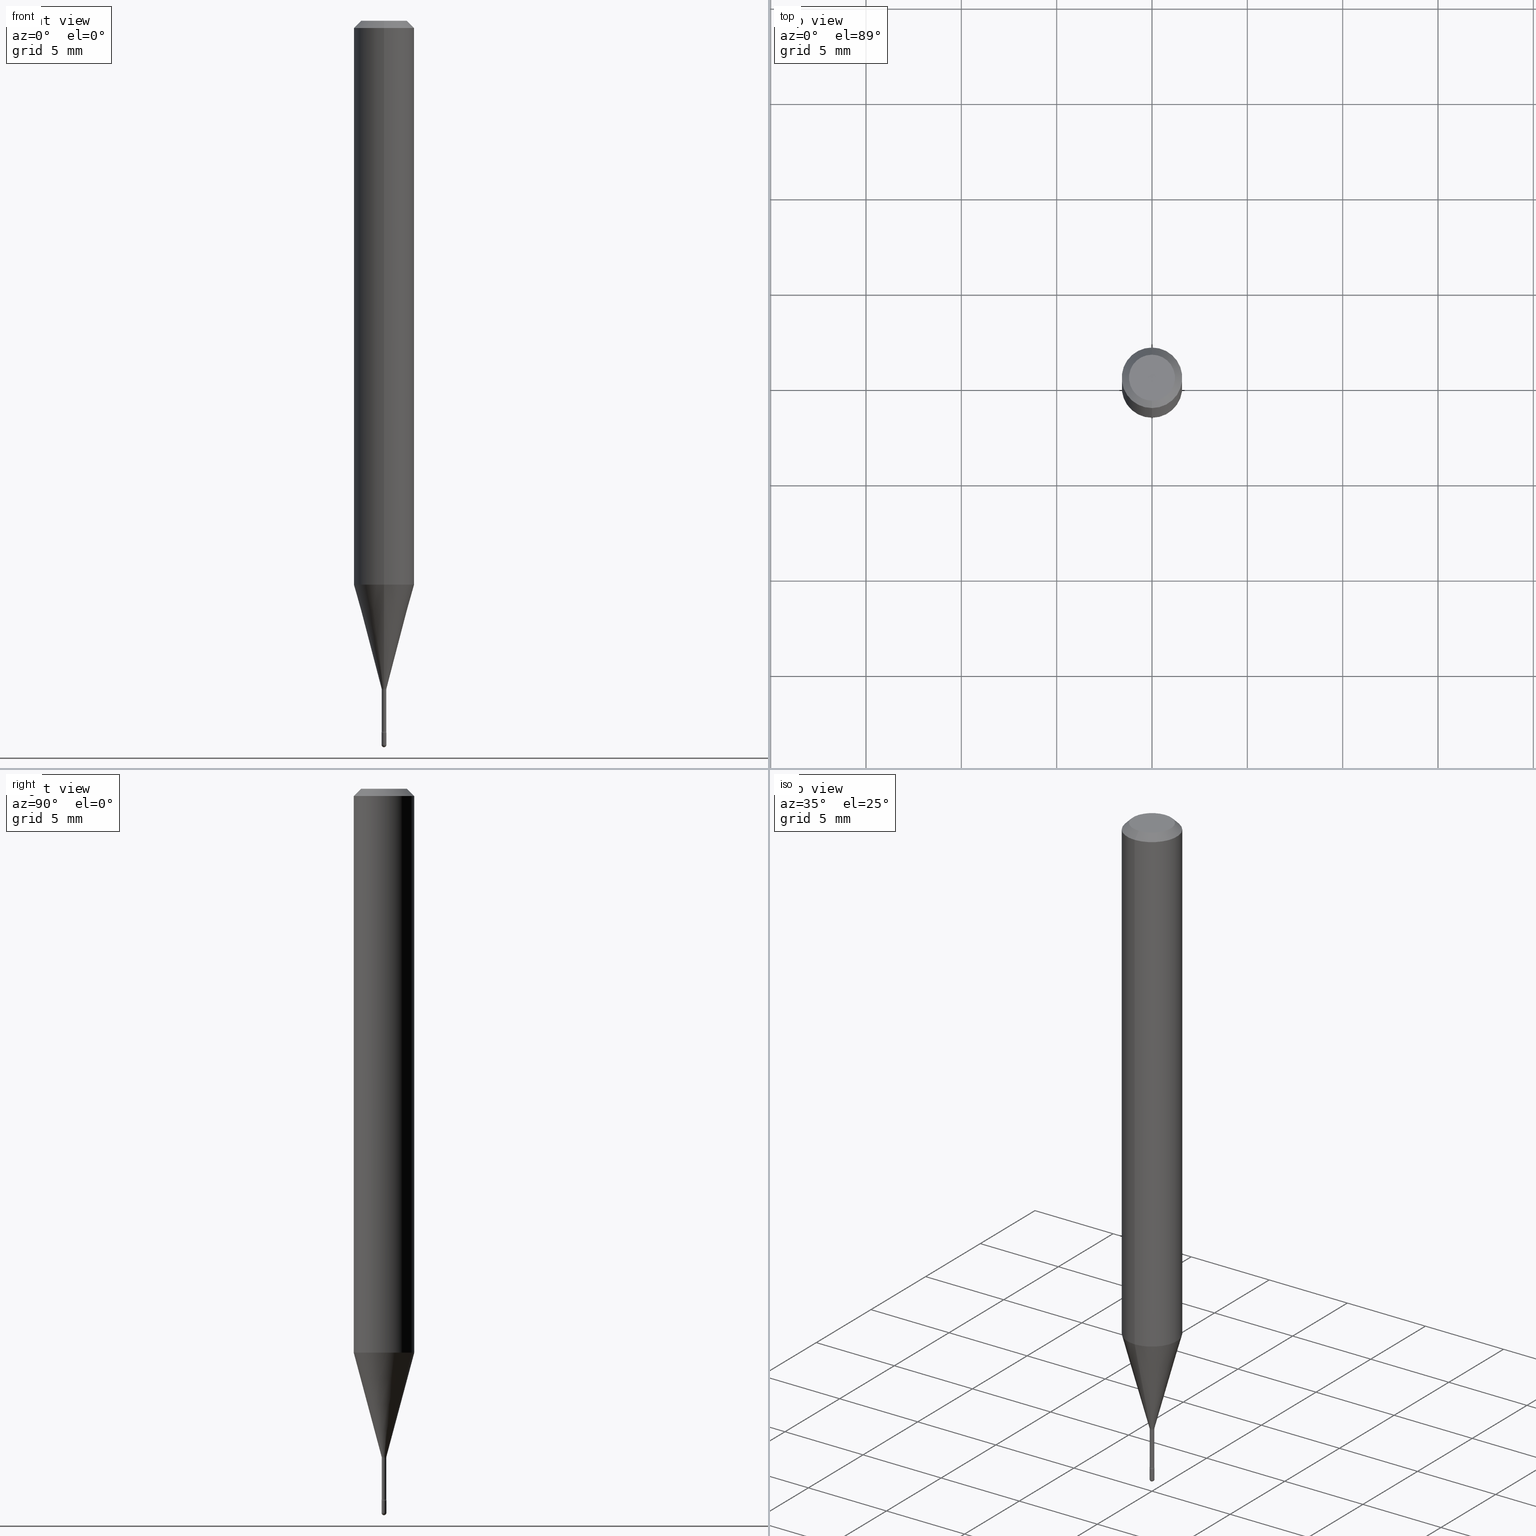
[diagram: canonical four-view strip — front | top / right | iso, engineering-drawing reading convention]
A machine part, canonical four-view strip (front | top / right | iso — engineering-drawing reading convention). The complete STEP part file that produces these views, byte-faithful:
ISO-10303-21;
HEADER;
FILE_DESCRIPTION (( 'STEP AP203' ),
    '1' );
FILE_NAME ('09298.STEP',
    '2024-04-09T22:14:48',
    ( '' ),
    ( '' ),
    'SwSTEP 2.0',
    'SolidWorks 2023',
    '' );
FILE_SCHEMA (( 'CONFIG_CONTROL_DESIGN' ));
ENDSEC;

DATA;
#1 = APPLICATION_CONTEXT ( 'configuration controlled 3d designs of mechanical parts and assemblies' ) ;
#2 = DIRECTION ( 'NONE',  ( -2.444369529050259608E-29, 3.493055566267258516E-15, 1.000000000000000000 ) ) ;
#3 = CIRCLE ( 'NONE', #561, 0.01500000000000003587 ) ;
#4 = CARTESIAN_POINT ( 'NONE',  ( 3.491481338846802914E-17, 0.004999999999994800270, -1.495000000000000107 ) ) ;
#5 = CYLINDRICAL_SURFACE ( 'NONE', #343, 0.06250000000000000000 ) ;
#6 = EDGE_CURVE ( 'NONE', #160, #361, #93, .T. ) ;
#7 = DIRECTION ( 'NONE',  ( -2.445468806185136597E-29, 3.491481338843145583E-15, 1.000000000000000000 ) ) ;
#8 = CIRCLE ( 'NONE', #462, 0.06250000000000000000 ) ;
#9 = ORIENTED_EDGE ( 'NONE', *, *, #72, .F. ) ;
#10 = AXIS2_PLACEMENT_3D ( 'NONE', #389, #523, #435 ) ;
#11 = DIRECTION ( 'NONE',  ( 1.000000000000000000, -7.105427357601001070E-15, 4.926334787267842840E-29 ) ) ;
#12 = ADVANCED_FACE ( 'NONE', ( #373 ), #153, .T. ) ;
#13 = VERTEX_POINT ( 'NONE', #493 ) ;
#14 = CARTESIAN_POINT ( 'NONE',  ( -1.375643647503857618E-16, -0.01970000000000483864, -1.381974787463811305 ) ) ;
#15 = EDGE_LOOP ( 'NONE', ( #286, #494 ) ) ;
#16 = ORIENTED_EDGE ( 'NONE', *, *, #350, .T. ) ;
#17 = CARTESIAN_POINT ( 'NONE',  ( -4.287811248607203282E-16, -0.06250000000000005551, -0.01499999999999986587 ) ) ;
#18 = ORIENTED_EDGE ( 'NONE', *, *, #518, .T. ) ;
#19 = CLOSED_SHELL ( 'NONE', ( #41, #524, #229, #376, #291, #310, #396, #128, #12, #155, #306, #56, #204, #413 ) ) ;
#20 = EDGE_CURVE ( 'NONE', #282, #359, #142, .T. ) ;
#21 = CIRCLE ( 'NONE', #550, 0.01500000000000001853 ) ;
#22 = DIRECTION ( 'NONE',  ( -6.982962677686265922E-15, -1.000000000000000000, 0.000000000000000000 ) ) ;
#23 = DIRECTION ( 'NONE',  ( -2.444369529050259608E-29, 3.493055566267258516E-15, 1.000000000000000000 ) ) ;
#24 = ORIENTED_EDGE ( 'NONE', *, *, #323, .T. ) ;
#25 = CARTESIAN_POINT ( 'NONE',  ( 3.552713678804105728E-17, 0.004999999999994881802, -1.470000000000000195 ) ) ;
#26 = DIRECTION ( 'NONE',  ( -2.444369529050259608E-29, 3.493055566267258516E-15, 1.000000000000000000 ) ) ;
#27 = ORIENTED_EDGE ( 'NONE', *, *, #475, .T. ) ;
#28 = APPROVAL_STATUS ( 'not_yet_approved' ) ;
#29 = EDGE_CURVE ( 'NONE', #486, #436, #173, .T. ) ;
#30 = CARTESIAN_POINT ( 'NONE',  ( 3.376595547336323602E-29, -4.829407693671720088E-15, -1.381974787463811305 ) ) ;
#31 = AXIS2_PLACEMENT_3D ( 'NONE', #30, #150, #104 ) ;
#32 = SHAPE_DEFINITION_REPRESENTATION ( #140, #101 ) ;
#33 = CIRCLE ( 'NONE', #308, 0.04749999999999999362 ) ;
#34 = APPROVAL_DATE_TIME ( #415, #179 ) ;
#35 = CARTESIAN_POINT ( 'NONE',  ( 4.440892098500909166E-16, 0.06249999999999594075, -1.164287463322519756 ) ) ;
#36 = EDGE_LOOP ( 'NONE', ( #257, #130, #97, #190 ) ) ;
#37 = CARTESIAN_POINT ( 'NONE',  ( -0.004999999999999997502, -5.140593948046958933E-15, -1.495000000000000107 ) ) ;
#38 = EDGE_LOOP ( 'NONE', ( #317, #206, #193, #504 ) ) ;
#39 = COORDINATED_UNIVERSAL_TIME_OFFSET ( 5, 0, .BEHIND. ) ;
#40 = CARTESIAN_POINT ( 'NONE',  ( 3.584558826531418680E-29, -5.126324140382401199E-15, -1.467015037688680135 ) ) ;
#41 = ADVANCED_FACE ( 'NONE', ( #543 ), #260, .F. ) ;
#42 = VECTOR ( 'NONE', #166, 39.37007874015748143 ) ;
#43 = PERSON_AND_ORGANIZATION_ROLE ( 'creator' ) ;
#44 = AXIS2_PLACEMENT_3D ( 'NONE', #223, #2, #181 ) ;
#45 = DIRECTION ( 'NONE',  ( -6.982962677686265922E-15, -1.000000000000000000, 0.000000000000000000 ) ) ;
#46 = CARTESIAN_POINT ( 'NONE',  ( 3.368567319581452030E-29, -4.813753684199207477E-15, -1.378092501787273605 ) ) ;
#47 = EDGE_CURVE ( 'NONE', #60, #228, #247, .T. ) ;
#48 = DIRECTION ( 'NONE',  ( 4.937700262164548042E-15, 0.7071067811865451302, -0.7071067811865499042 ) ) ;
#49 = CLOSED_SHELL ( 'NONE', ( #487, #457, #480, #118, #498 ) ) ;
#50 = DIRECTION ( 'NONE',  ( -2.444369529050259608E-29, 3.493055566267258911E-15, 1.000000000000000000 ) ) ;
#51 = APPROVAL_PERSON_ORGANIZATION ( #121, #362, #505 ) ;
#52 = EDGE_CURVE ( 'NONE', #367, #282, #481, .T. ) ;
#53 = CC_DESIGN_SECURITY_CLASSIFICATION ( #210, ( #432 ) ) ;
#54 = FACE_OUTER_BOUND ( 'NONE', #325, .T. ) ;
#55 = LINE ( 'NONE', #139, #274 ) ;
#56 = ADVANCED_FACE ( 'NONE', ( #171 ), #424, .F. ) ;
#57 = DIRECTION ( 'NONE',  ( -2.445468806185136597E-29, 3.491481338843145583E-15, 1.000000000000000000 ) ) ;
#58 = ORIENTED_EDGE ( 'NONE', *, *, #162, .F. ) ;
#59 = DIRECTION ( 'NONE',  ( -2.444369529050259608E-29, 3.493055566267258911E-15, 1.000000000000000000 ) ) ;
#60 = VERTEX_POINT ( 'NONE', #554 ) ;
#61 = DIRECTION ( 'NONE',  ( -2.444369529050259608E-29, 3.493055566267258516E-15, 1.000000000000000000 ) ) ;
#62 = DIRECTION ( 'NONE',  ( 6.982962677686265922E-15, 1.000000000000000000, -3.483106191921935554E-15 ) ) ;
#63 = EDGE_LOOP ( 'NONE', ( #398, #172, #124, #113 ) ) ;
#64 = APPLICATION_CONTEXT ( 'configuration controlled 3d designs of mechanical parts and assemblies' ) ;
#65 = CARTESIAN_POINT ( 'NONE',  ( 1.399769189447757443E-16, 0.01969999999999490214, -1.467015037688680135 ) ) ;
#66 = ORIENTED_EDGE ( 'NONE', *, *, #372, .T. ) ;
#67 = FACE_OUTER_BOUND ( 'NONE', #238, .T. ) ;
#68 = VERTEX_POINT ( 'NONE', #37 ) ;
#69 = VERTEX_POINT ( 'NONE', #562 ) ;
#70 = CARTESIAN_POINT ( 'NONE',  ( 3.593223207703881417E-29, -5.134791682412870366E-15, -1.470000000000000195 ) ) ;
#71 = ORIENTED_EDGE ( 'NONE', *, *, #6, .F. ) ;
#72 = EDGE_CURVE ( 'NONE', #80, #69, #559, .T. ) ;
#73 = MECHANICAL_CONTEXT ( 'NONE', #1, 'mechanical' ) ;
#74 = LINE ( 'NONE', #259, #240 ) ;
#75 = EDGE_LOOP ( 'NONE', ( #242, #235, #456, #106 ) ) ;
#76 = ORIENTED_EDGE ( 'NONE', *, *, #475, .F. ) ;
#77 = CIRCLE ( 'NONE', #354, 0.004699999999999988909 ) ;
#78 = DIRECTION ( 'NONE',  ( 6.982962677686265922E-15, 1.000000000000000000, 0.000000000000000000 ) ) ;
#79 = LINE ( 'NONE', #341, #363 ) ;
#80 = VERTEX_POINT ( 'NONE', #301 ) ;
#81 = EDGE_CURVE ( 'NONE', #188, #13, #8, .T. ) ;
#82 = PERSON_AND_ORGANIZATION_ROLE ( 'design_owner' ) ;
#83 = DIRECTION ( 'NONE',  ( 2.444369529050259048E-29, -3.493055566267258911E-15, -1.000000000000000000 ) ) ;
#84 = UNCERTAINTY_MEASURE_WITH_UNIT (LENGTH_MEASURE( 1.000000000000000082E-05 ), #502, 'distance_accuracy_value', 'NONE');
#85 = AXIS2_PLACEMENT_3D ( 'NONE', #70, #23, #202 ) ;
#86 = APPROVAL_ROLE ( '' ) ;
#87 = CONICAL_SURFACE ( 'NONE', #44, 0.005211112605663924778, 0.2617993877991496299 ) ;
#88 = CARTESIAN_POINT ( 'NONE',  ( 2.845948798400788253E-29, -4.066920804493912675E-15, -1.164287463322519312 ) ) ;
#89 = CARTESIAN_POINT ( 'NONE',  ( 4.440892098500912124E-16, 0.06249999999999995837, -0.01500000000000030129 ) ) ;
#90 = EDGE_CURVE ( 'NONE', #68, #203, #79, .T. ) ;
#91 = CARTESIAN_POINT ( 'NONE',  ( 3.668417000849999602E-29, -5.236915846564931875E-15, -1.500000000000000222 ) ) ;
#92 = PRODUCT ( '09298', '09298', '', ( #73 ) ) ;
#93 = CIRCLE ( 'NONE', #408, 0.005211112605663924778 ) ;
#94 = DIRECTION ( 'NONE',  ( -2.444369529050259608E-29, 3.493055566267258516E-15, 1.000000000000000000 ) ) ;
#95 = AXIS2_PLACEMENT_3D ( 'NONE', #500, #539, #454 ) ;
#96 = DIRECTION ( 'NONE',  ( -2.444369529050259608E-29, 3.493055566267258516E-15, 1.000000000000000000 ) ) ;
#97 = ORIENTED_EDGE ( 'NONE', *, *, #372, .F. ) ;
#98 = EDGE_CURVE ( 'NONE', #367, #322, #431, .T. ) ;
#99 = CARTESIAN_POINT ( 'NONE',  ( -1.169113584055446105E-44, 1.669184350826100908E-30, 4.780733988912460139E-16 ) ) ;
#100 = ORIENTED_EDGE ( 'NONE', *, *, #509, .T. ) ;
#101 = ADVANCED_BREP_SHAPE_REPRESENTATION ( '09298', ( #297, #477, #491 ), #529 ) ;
#102 = DIRECTION ( 'NONE',  ( 1.000000000000000000, -6.982962677686266711E-15, 4.876176775795936914E-29 ) ) ;
#103 = VECTOR ( 'NONE', #111, 39.37007874015748143 ) ;
#104 = DIRECTION ( 'NONE',  ( -6.982962677686265133E-15, -1.000000000000000000, 3.493055566267258911E-15 ) ) ;
#105 = LOCAL_TIME ( 18, 14, 48.00000000000000000, #168 ) ;
#106 = ORIENTED_EDGE ( 'NONE', *, *, #81, .F. ) ;
#107 = ORIENTED_EDGE ( 'NONE', *, *, #315, .F. ) ;
#108 = APPROVAL_DATE_TIME ( #283, #345 ) ;
#109 = ORIENTED_EDGE ( 'NONE', *, *, #420, .F. ) ;
#110 = CARTESIAN_POINT ( 'NONE',  ( 0.000000000000000000, 0.000000000000000000, 0.000000000000000000 ) ) ;
#111 = DIRECTION ( 'NONE',  ( -4.851104656540964275E-15, -0.7071067811865500152, -0.7071067811865450192 ) ) ;
#112 = CYLINDRICAL_SURFACE ( 'NONE', #482, 0.004999999999999997502 ) ;
#113 = ORIENTED_EDGE ( 'NONE', *, *, #194, .F. ) ;
#114 = EDGE_CURVE ( 'NONE', #359, #496, #295, .T. ) ;
#115 = CIRCLE ( 'NONE', #384, 0.06250000000000000000 ) ;
#116 = DIRECTION ( 'NONE',  ( 7.105427357601000281E-15, 1.000000000000000000, 0.000000000000000000 ) ) ;
#117 = VERTEX_POINT ( 'NONE', #512 ) ;
#118 = ADVANCED_FACE ( 'NONE', ( #338 ), #133, .T. ) ;
#119 = CARTESIAN_POINT ( 'NONE',  ( -4.364351673553912750E-16, -0.06250000000000005551, -0.01499999999999986587 ) ) ;
#120 = ORIENTED_EDGE ( 'NONE', *, *, #218, .T. ) ;
#121 = PERSON_AND_ORGANIZATION ( #267, #187 ) ;
#122 = DIRECTION ( 'NONE',  ( 1.839019923739595977E-15, 0.2588190451025243477, 0.9659258262890673130 ) ) ;
#123 = DIRECTION ( 'NONE',  ( -6.982962677686265922E-15, -1.000000000000000000, 3.493055566267252206E-15 ) ) ;
#124 = ORIENTED_EDGE ( 'NONE', *, *, #221, .T. ) ;
#125 = AXIS2_PLACEMENT_3D ( 'NONE', #46, #222, #45 ) ;
#126 = AXIS2_PLACEMENT_3D ( 'NONE', #327, #149, #116 ) ;
#127 =( NAMED_UNIT ( * ) SI_UNIT ( $, .STERADIAN. ) SOLID_ANGLE_UNIT ( ) );
#128 = ADVANCED_FACE ( 'NONE', ( #131 ), #249, .T. ) ;
#129 = DIRECTION ( 'NONE',  ( -1.000000000000000000, 6.982962677686265922E-15, -4.883557194083113462E-29 ) ) ;
#130 = ORIENTED_EDGE ( 'NONE', *, *, #98, .T. ) ;
#131 = FACE_OUTER_BOUND ( 'NONE', #558, .T. ) ;
#132 = PERSON_AND_ORGANIZATION ( #267, #187 ) ;
#133 = SPHERICAL_SURFACE ( 'NONE', #268, 0.005000000000000040870 ) ;
#134 = AXIS2_PLACEMENT_3D ( 'NONE', #216, #465, #177 ) ;
#135 = AXIS2_PLACEMENT_3D ( 'NONE', #478, #94, #137 ) ;
#136 = LOCAL_TIME ( 18, 14, 48.00000000000000000, #318 ) ;
#137 = DIRECTION ( 'NONE',  ( -6.982962677686265133E-15, -1.000000000000000000, 0.000000000000000000 ) ) ;
#138 = CC_DESIGN_DATE_AND_TIME_ASSIGNMENT ( #437, #344, ( #210 ) ) ;
#139 = CARTESIAN_POINT ( 'NONE',  ( 4.364351673553919652E-16, 0.06249999999999995143, -0.01500000000000030129 ) ) ;
#140 = PRODUCT_DEFINITION_SHAPE ( 'NONE', 'NONE',  #273 ) ;
#141 = DIRECTION ( 'NONE',  ( -2.444369529050259608E-29, 3.493055566267258516E-15, 1.000000000000000000 ) ) ;
#142 = CIRCLE ( 'NONE', #439, 0.004999999999999997502 ) ;
#143 = PLANE ( 'NONE',  #510 ) ;
#144 = AXIS2_PLACEMENT_3D ( 'NONE', #110, #159, #358 ) ;
#145 = ORIENTED_EDGE ( 'NONE', *, *, #266, .T. ) ;
#146 = ORIENTED_EDGE ( 'NONE', *, *, #447, .T. ) ;
#147 = DIRECTION ( 'NONE',  ( -2.444369529050259048E-29, 3.493055566267258911E-15, 1.000000000000000000 ) ) ;
#148 = ORIENTED_EDGE ( 'NONE', *, *, #407, .F. ) ;
#149 = DIRECTION ( 'NONE',  ( 1.000000000000000000, -7.105427357601001070E-15, 4.926334787267842840E-29 ) ) ;
#150 = DIRECTION ( 'NONE',  ( -2.444369529050259608E-29, 3.493055566267258516E-15, 1.000000000000000000 ) ) ;
#151 = ORIENTED_EDGE ( 'NONE', *, *, #426, .T. ) ;
#152 = DIRECTION ( 'NONE',  ( -2.445468806185136597E-29, 3.491481338843145583E-15, 1.000000000000000000 ) ) ;
#153 = CONICAL_SURFACE ( 'NONE', #440, 0.06250000000000000000, 0.7853981633974483900 ) ;
#154 = EDGE_LOOP ( 'NONE', ( #71, #100, #444, #76 ) ) ;
#155 = ADVANCED_FACE ( 'NONE', ( #298 ), #263, .F. ) ;
#156 = CARTESIAN_POINT ( 'NONE',  ( 3.594839145092150820E-29, -5.132477568099424807E-15, -1.470000000000000195 ) ) ;
#157 = ORIENTED_EDGE ( 'NONE', *, *, #509, .F. ) ;
#158 = PERSON_AND_ORGANIZATION_ROLE ( 'classification_officer' ) ;
#159 = DIRECTION ( 'NONE',  ( -2.445468806185136597E-29, 3.491481338843145583E-15, 1.000000000000000000 ) ) ;
#160 = VERTEX_POINT ( 'NONE', #557 ) ;
#161 = LINE ( 'NONE', #402, #198 ) ;
#162 = EDGE_CURVE ( 'NONE', #361, #13, #74, .T. ) ;
#163 = EDGE_LOOP ( 'NONE', ( #460, #533, #555, #381, #66 ) ) ;
#164 = AXIS2_PLACEMENT_3D ( 'NONE', #430, #57, #520 ) ;
#165 = CIRCLE ( 'NONE', #232, 0.004999999999999997502 ) ;
#166 = DIRECTION ( 'NONE',  ( -2.444369529050259608E-29, 3.493055566267258911E-15, 1.000000000000000000 ) ) ;
#167 = ORIENTED_EDGE ( 'NONE', *, *, #564, .T. ) ;
#168 = COORDINATED_UNIVERSAL_TIME_OFFSET ( 5, 0, .BEHIND. ) ;
#169 = EDGE_LOOP ( 'NONE', ( #215, #107, #328, #16 ) ) ;
#170 = PRODUCT_RELATED_PRODUCT_CATEGORY ( 'detail', '', ( #92 ) ) ;
#171 = FACE_OUTER_BOUND ( 'NONE', #38, .T. ) ;
#172 = ORIENTED_EDGE ( 'NONE', *, *, #407, .T. ) ;
#173 = CIRCLE ( 'NONE', #85, 0.005000000000000000104 ) ;
#174 = CIRCLE ( 'NONE', #349, 0.06250000000000000000 ) ;
#175 = DIRECTION ( 'NONE',  ( -6.982962677686265922E-15, -1.000000000000000000, 0.000000000000000000 ) ) ;
#176 = CARTESIAN_POINT ( 'NONE',  ( 3.702718207185757329E-17, 0.005211112605659110920, -1.378092501787273605 ) ) ;
#177 = DIRECTION ( 'NONE',  ( 6.982962677686265133E-15, 1.000000000000000000, 0.000000000000000000 ) ) ;
#178 = DIRECTION ( 'NONE',  ( -6.982962677686265922E-15, -1.000000000000000000, 3.493055566267258516E-15 ) ) ;
#179 = APPROVAL ( #386, 'UNSPECIFIED' ) ;
#180 = VECTOR ( 'NONE', #382, 39.37007874015748143 ) ;
#181 = DIRECTION ( 'NONE',  ( -6.982962677686265922E-15, -1.000000000000000000, 0.000000000000000000 ) ) ;
#182 = DIRECTION ( 'NONE',  ( 1.000000000000000000, -6.982962677686336130E-15, 0.000000000000000000 ) ) ;
#183 = APPROVAL_STATUS ( 'not_yet_approved' ) ;
#184 = DIRECTION ( 'NONE',  ( -2.444369529050259608E-29, 3.493055566267258516E-15, 1.000000000000000000 ) ) ;
#185 = AXIS2_PLACEMENT_3D ( 'NONE', #515, #214, #175 ) ;
#186 = DIRECTION ( 'NONE',  ( 1.000000000000000000, -6.982962677686336130E-15, 0.000000000000000000 ) ) ;
#187 = ORGANIZATION ( 'UNSPECIFIED', 'UNSPECIFIED', '' ) ;
#188 = VERTEX_POINT ( 'NONE', #35 ) ;
#189 = DIRECTION ( 'NONE',  ( 7.105427357601001859E-15, 1.000000000000000000, 0.000000000000000000 ) ) ;
#190 = ORIENTED_EDGE ( 'NONE', *, *, #20, .F. ) ;
#191 = CARTESIAN_POINT ( 'NONE',  ( 0.000000000000000000, 0.000000000000000000, 0.000000000000000000 ) ) ;
#192 = DIRECTION ( 'NONE',  ( 2.444369529050259608E-29, -3.493055566267258516E-15, -1.000000000000000000 ) ) ;
#193 = ORIENTED_EDGE ( 'NONE', *, *, #356, .T. ) ;
#194 = EDGE_CURVE ( 'NONE', #69, #80, #302, .T. ) ;
#195 = CARTESIAN_POINT ( 'NONE',  ( -3.281992458508950791E-17, -0.004700000000005113282, -1.467015037688680135 ) ) ;
#196 = CIRCLE ( 'NONE', #164, 0.004999999999999997502 ) ;
#197 = EDGE_LOOP ( 'NONE', ( #245, #167, #314, #357, #331 ) ) ;
#198 = VECTOR ( 'NONE', #278, 39.37007874015748143 ) ;
#199 = EDGE_LOOP ( 'NONE', ( #24, #145, #9, #544 ) ) ;
#200 = PERSON_AND_ORGANIZATION_ROLE ( 'design_supplier' ) ;
#201 = DIRECTION ( 'NONE',  ( -2.444369529050259608E-29, 3.493055566267258516E-15, 1.000000000000000000 ) ) ;
#202 = DIRECTION ( 'NONE',  ( -6.982962677686265922E-15, -1.000000000000000000, 0.000000000000000000 ) ) ;
#203 = VERTEX_POINT ( 'NONE', #467 ) ;
#204 = ADVANCED_FACE ( 'NONE', ( #507 ), #423, .T. ) ;
#205 = FACE_OUTER_BOUND ( 'NONE', #199, .T. ) ;
#206 = ORIENTED_EDGE ( 'NONE', *, *, #323, .F. ) ;
#207 = APPLICATION_PROTOCOL_DEFINITION ( 'international standard', 'config_control_design', 1994, #1 ) ;
#208 = AXIS2_PLACEMENT_3D ( 'NONE', #469, #83, #517 ) ;
#209 = AXIS2_PLACEMENT_3D ( 'NONE', #365, #61, #276 ) ;
#210 = SECURITY_CLASSIFICATION ( '', '', #368 ) ;
#211 = PERSON_AND_ORGANIZATION ( #267, #187 ) ;
#212 = CARTESIAN_POINT ( 'NONE',  ( 3.378057060392248747E-29, -4.827314723791478385E-15, -1.381974787463811305 ) ) ;
#213 = ORIENTED_EDGE ( 'NONE', *, *, #556, .T. ) ;
#214 = DIRECTION ( 'NONE',  ( -2.444369529050259608E-29, 3.493055566267258516E-15, 1.000000000000000000 ) ) ;
#215 = ORIENTED_EDGE ( 'NONE', *, *, #47, .F. ) ;
#216 = CARTESIAN_POINT ( 'NONE',  ( 3.655975865246779122E-29, -5.219764601570503141E-15, -1.495000000000000107 ) ) ;
#217 = AXIS2_PLACEMENT_3D ( 'NONE', #40, #346, #418 ) ;
#218 = EDGE_CURVE ( 'NONE', #361, #160, #519, .T. ) ;
#219 = CALENDAR_DATE ( 2024, 9, 4 ) ;
#220 = LINE ( 'NONE', #552, #42 ) ;
#221 = EDGE_CURVE ( 'NONE', #452, #80, #220, .T. ) ;
#222 = DIRECTION ( 'NONE',  ( -2.444369529050259608E-29, 3.493055566267258516E-15, 1.000000000000000000 ) ) ;
#223 = CARTESIAN_POINT ( 'NONE',  ( 3.368567319581452030E-29, -4.813753684199207477E-15, -1.378092501787273605 ) ) ;
#224 = APPROVAL_PERSON_ORGANIZATION ( #132, #345, #86 ) ;
#225 = CARTESIAN_POINT ( 'NONE',  ( 3.491481338846726493E-17, 0.004999999999994865323, -1.470000000000000195 ) ) ;
#226 = CARTESIAN_POINT ( 'NONE',  ( -3.552713678796857452E-17, -0.005000000000005238969, -1.495000000000000107 ) ) ;
#227 = DIRECTION ( 'NONE',  ( -6.982962677686265922E-15, -1.000000000000000000, 3.493055566267257728E-15 ) ) ;
#228 = VERTEX_POINT ( 'NONE', #119 ) ;
#229 = ADVANCED_FACE ( 'NONE', ( #433 ), #383, .F. ) ;
#230 = AXIS2_PLACEMENT_3D ( 'NONE', #483, #395, #309 ) ;
#231 = CARTESIAN_POINT ( 'NONE',  ( 3.376595547336323602E-29, -4.829407693671720088E-15, -1.381974787463811305 ) ) ;
#232 = AXIS2_PLACEMENT_3D ( 'NONE', #312, #272, #476 ) ;
#233 = ORIENTED_EDGE ( 'NONE', *, *, #420, .T. ) ;
#234 = CC_DESIGN_PERSON_AND_ORGANIZATION_ASSIGNMENT ( #541, #158, ( #210 ) ) ;
#235 = ORIENTED_EDGE ( 'NONE', *, *, #6, .T. ) ;
#236 = CARTESIAN_POINT ( 'NONE',  ( 3.593223207703881417E-29, -5.134791682412870366E-15, -1.470000000000000195 ) ) ;
#237 = DIRECTION ( 'NONE',  ( -6.982962677686265922E-15, -1.000000000000000000, 0.000000000000000000 ) ) ;
#238 = EDGE_LOOP ( 'NONE', ( #299, #370, #501, #333 ) ) ;
#239 = LINE ( 'NONE', #321, #464 ) ;
#240 = VECTOR ( 'NONE', #380, 39.37007874015748854 ) ;
#241 = CIRCLE ( 'NONE', #126, 0.01500000000000001853 ) ;
#242 = ORIENTED_EDGE ( 'NONE', *, *, #556, .F. ) ;
#243 = DIRECTION ( 'NONE',  ( -2.444369529050259608E-29, 3.493055566267258516E-15, 1.000000000000000000 ) ) ;
#244 = DESIGN_CONTEXT ( 'detailed design', #64, 'design' ) ;
#245 = ORIENTED_EDGE ( 'NONE', *, *, #90, .F. ) ;
#246 = LINE ( 'NONE', #176, #303 ) ;
#247 = LINE ( 'NONE', #17, #103 ) ;
#248 = DIRECTION ( 'NONE',  ( 1.000000000000000000, 0.000000000000000000, 0.000000000000000000 ) ) ;
#249 = CYLINDRICAL_SURFACE ( 'NONE', #537, 0.06250000000000000000 ) ;
#250 = EDGE_LOOP ( 'NONE', ( #540, #233, #342, #419 ) ) ;
#251 = AXIS2_PLACEMENT_3D ( 'NONE', #525, #526, #182 ) ;
#252 = CIRCLE ( 'NONE', #10, 0.01500000000000003587 ) ;
#253 = APPROVAL_ROLE ( '' ) ;
#254 = DIRECTION ( 'NONE',  ( -2.445468806185136877E-29, 3.491481338843145188E-15, 1.000000000000000000 ) ) ;
#255 = EDGE_CURVE ( 'NONE', #322, #68, #196, .T. ) ;
#256 = CARTESIAN_POINT ( 'NONE',  ( 3.655975865246779122E-29, -5.219764601570503141E-15, -1.495000000000000107 ) ) ;
#257 = ORIENTED_EDGE ( 'NONE', *, *, #52, .F. ) ;
#258 = DATE_TIME_ROLE ( 'creation_date' ) ;
#259 = CARTESIAN_POINT ( 'NONE',  ( -3.638900483453792750E-17, -0.005211112605668737768, -1.378092501787273605 ) ) ;
#260 = TOROIDAL_SURFACE ( 'NONE', #31, 0.01970000000000000917, 0.01500000000000001679 ) ;
#261 = EDGE_CURVE ( 'NONE', #528, #394, #55, .T. ) ;
#262 = AXIS2_PLACEMENT_3D ( 'NONE', #236, #492, #22 ) ;
#263 = PLANE ( 'NONE',  #208 ) ;
#264 = FACE_OUTER_BOUND ( 'NONE', #75, .T. ) ;
#265 = CARTESIAN_POINT ( 'NONE',  ( 3.655975865246779122E-29, -5.219764601570503141E-15, -1.495000000000000107 ) ) ;
#266 = EDGE_CURVE ( 'NONE', #117, #69, #566, .T. ) ;
#267 = PERSON ( 'UNSPECIFIED', 'UNSPECIFIED', 'UNSPECIFIED', ('UNSPECIFIED'), ('UNSPECIFIED'), ('UNSPECIFIED') ) ;
#268 = AXIS2_PLACEMENT_3D ( 'NONE', #256, #129, #78 ) ;
#269 = DIRECTION ( 'NONE',  ( 2.444369529050259608E-29, -3.493055566267258516E-15, -1.000000000000000000 ) ) ;
#270 = DIRECTION ( 'NONE',  ( -6.982962677686265922E-15, -1.000000000000000000, 3.483106191921935554E-15 ) ) ;
#271 = ORIENTED_EDGE ( 'NONE', *, *, #518, .F. ) ;
#272 = DIRECTION ( 'NONE',  ( -2.445468806185136597E-29, 3.491481338843145583E-15, 1.000000000000000000 ) ) ;
#273 = PRODUCT_DEFINITION ( 'UNKNOWN', '', #432, #244 ) ;
#274 = VECTOR ( 'NONE', #48, 39.37007874015748143 ) ;
#275 = CIRCLE ( 'NONE', #262, 0.005000000000000000104 ) ;
#276 = DIRECTION ( 'NONE',  ( -6.982962677686265922E-15, -1.000000000000000000, 4.370956789862821150E-15 ) ) ;
#277 = CARTESIAN_POINT ( 'NONE',  ( 3.368567319581452030E-29, -4.813753684199207477E-15, -1.378092501787273605 ) ) ;
#278 = DIRECTION ( 'NONE',  ( -2.444369529050259608E-29, 3.493055566267258911E-15, 1.000000000000000000 ) ) ;
#279 = CARTESIAN_POINT ( 'NONE',  ( -3.491481338839552790E-17, -0.005000000000005153968, -1.470000000000000195 ) ) ;
#280 = CARTESIAN_POINT ( 'NONE',  ( 3.655975865246779122E-29, -5.219764601570503141E-15, -1.495000000000000107 ) ) ;
#281 = CC_DESIGN_PERSON_AND_ORGANIZATION_ASSIGNMENT ( #445, #404, ( #432 ) ) ;
#282 = VERTEX_POINT ( 'NONE', #226 ) ;
#283 = DATE_AND_TIME ( #545, #136 ) ;
#284 = CYLINDRICAL_SURFACE ( 'NONE', #144, 0.004999999999999997502 ) ;
#285 = CIRCLE ( 'NONE', #135, 0.004699999999999988909 ) ;
#286 = ORIENTED_EDGE ( 'NONE', *, *, #330, .T. ) ;
#287 = DIMENSIONAL_EXPONENTS ( 1.000000000000000000, 0.000000000000000000, 0.000000000000000000, 0.000000000000000000, 0.000000000000000000, 0.000000000000000000, 0.000000000000000000 ) ;
#288 = CARTESIAN_POINT ( 'NONE',  ( 2.015560089653394899E-45, -2.895313811912280609E-31, -8.267225626890004316E-17 ) ) ;
#289 = ORIENTED_EDGE ( 'NONE', *, *, #471, .F. ) ;
#290 = DATE_AND_TIME ( #461, #455 ) ;
#291 = ADVANCED_FACE ( 'NONE', ( #304 ), #5, .T. ) ;
#292 = CARTESIAN_POINT ( 'NONE',  ( 0.000000000000000000, 0.000000000000000000, 0.000000000000000000 ) ) ;
#293 = DIRECTION ( 'NONE',  ( -2.444369529050259608E-29, 3.493055566267258516E-15, 1.000000000000000000 ) ) ;
#294 = ORIENTED_EDGE ( 'NONE', *, *, #356, .F. ) ;
#295 = LINE ( 'NONE', #565, #180 ) ;
#296 = ORIENTED_EDGE ( 'NONE', *, *, #218, .F. ) ;
#297 = MANIFOLD_SOLID_BREP ( 'Body-Move/Copy2[1]', #49 ) ;
#298 = FACE_OUTER_BOUND ( 'NONE', #536, .T. ) ;
#299 = ORIENTED_EDGE ( 'NONE', *, *, #98, .F. ) ;
#300 = CARTESIAN_POINT ( 'NONE',  ( -1.169113584055446105E-44, 1.669184350826100908E-30, 4.780733988912460139E-16 ) ) ;
#301 = CARTESIAN_POINT ( 'NONE',  ( -3.281992458509176972E-17, -0.004700000000004841798, -1.381974787463811305 ) ) ;
#302 = CIRCLE ( 'NONE', #414, 0.004700000000000014062 ) ;
#303 = VECTOR ( 'NONE', #122, 39.37007874015748143 ) ;
#304 = FACE_OUTER_BOUND ( 'NONE', #250, .T. ) ;
#305 = CARTESIAN_POINT ( 'NONE',  ( 3.666554293575409416E-31, -5.239583349400916642E-17, -0.01500000000000008271 ) ) ;
#306 = ADVANCED_FACE ( 'NONE', ( #54 ), #143, .F. ) ;
#307 = CARTESIAN_POINT ( 'NONE',  ( 3.666554293575409416E-31, -5.239583349400916642E-17, -0.01500000000000008271 ) ) ;
#308 = AXIS2_PLACEMENT_3D ( 'NONE', #288, #243, #412 ) ;
#309 = DIRECTION ( 'NONE',  ( -6.982962677686265922E-15, -1.000000000000000000, 0.000000000000000000 ) ) ;
#310 = ADVANCED_FACE ( 'NONE', ( #351 ), #375, .T. ) ;
#311 = CALENDAR_DATE ( 2024, 9, 4 ) ;
#312 = CARTESIAN_POINT ( 'NONE',  ( 3.594839145092150820E-29, -5.132477568099424807E-15, -1.470000000000000195 ) ) ;
#313 = ORIENTED_EDGE ( 'NONE', *, *, #81, .T. ) ;
#314 = ORIENTED_EDGE ( 'NONE', *, *, #20, .T. ) ;
#315 = EDGE_CURVE ( 'NONE', #528, #60, #549, .T. ) ;
#316 = CYLINDRICAL_SURFACE ( 'NONE', #416, 0.004700000000000001919 ) ;
#317 = ORIENTED_EDGE ( 'NONE', *, *, #447, .F. ) ;
#318 = COORDINATED_UNIVERSAL_TIME_OFFSET ( 5, 0, .BEHIND. ) ;
#319 = AXIS2_PLACEMENT_3D ( 'NONE', #352, #479, #178 ) ;
#320 = CIRCLE ( 'NONE', #209, 0.06250000000000000000 ) ;
#321 = CARTESIAN_POINT ( 'NONE',  ( -4.364351673553916201E-16, -0.06250000000000000000, 6.963893717829496712E-16 ) ) ;
#322 = VERTEX_POINT ( 'NONE', #4 ) ;
#323 = EDGE_CURVE ( 'NONE', #452, #117, #285, .T. ) ;
#324 = DIRECTION ( 'NONE',  ( -6.982962677686265133E-15, -1.000000000000000000, 0.000000000000000000 ) ) ;
#325 = EDGE_LOOP ( 'NONE', ( #289, #468 ) ) ;
#326 = COORDINATED_UNIVERSAL_TIME_OFFSET ( 5, 0, .BEHIND. ) ;
#327 = CARTESIAN_POINT ( 'NONE',  ( 1.399769189447735256E-16, 0.01969999999999518317, -1.381974787463811305 ) ) ;
#328 = ORIENTED_EDGE ( 'NONE', *, *, #261, .T. ) ;
#329 = DIRECTION ( 'NONE',  ( -6.982962677686265133E-15, -1.000000000000000000, 3.493055566267258911E-15 ) ) ;
#330 = EDGE_CURVE ( 'NONE', #496, #203, #490, .T. ) ;
#331 = ORIENTED_EDGE ( 'NONE', *, *, #390, .F. ) ;
#332 = CC_DESIGN_APPROVAL ( #179, ( #273 ) ) ;
#333 = ORIENTED_EDGE ( 'NONE', *, *, #255, .F. ) ;
#334 = CARTESIAN_POINT ( 'NONE',  ( 3.840629472727447874E-16, 0.04749999999999999362, -2.485923956665947867E-16 ) ) ;
#335 = CARTESIAN_POINT ( 'NONE',  ( -1.169113584055446105E-44, 1.669184350826100908E-30, 4.780733988912460139E-16 ) ) ;
#336 = ORIENTED_EDGE ( 'NONE', *, *, #470, .F. ) ;
#337 = PERSON_AND_ORGANIZATION ( #267, #187 ) ;
#338 = FACE_OUTER_BOUND ( 'NONE', #36, .T. ) ;
#339 = ORIENTED_EDGE ( 'NONE', *, *, #261, .F. ) ;
#340 = COORDINATED_UNIVERSAL_TIME_OFFSET ( 5, 0, .BEHIND. ) ;
#341 = CARTESIAN_POINT ( 'NONE',  ( -0.004999999999999997502, 3.552713678800499154E-17, -2.459467545127451822E-31 ) ) ;
#342 = ORIENTED_EDGE ( 'NONE', *, *, #426, .F. ) ;
#343 = AXIS2_PLACEMENT_3D ( 'NONE', #99, #141, #227 ) ;
#344 = DATE_TIME_ROLE ( 'classification_date' ) ;
#345 = APPROVAL ( #183, 'UNSPECIFIED' ) ;
#346 = DIRECTION ( 'NONE',  ( -2.444369529050259608E-29, 3.493055566267258516E-15, 1.000000000000000000 ) ) ;
#347 = DIRECTION ( 'NONE',  ( -6.982962677686266711E-15, -1.000000000000000000, 3.493055566267258516E-15 ) ) ;
#348 = AXIS2_PLACEMENT_3D ( 'NONE', #280, #451, #387 ) ;
#349 = AXIS2_PLACEMENT_3D ( 'NONE', #305, #96, #270 ) ;
#350 = EDGE_CURVE ( 'NONE', #394, #228, #174, .T. ) ;
#351 = FACE_OUTER_BOUND ( 'NONE', #548, .T. ) ;
#352 = CARTESIAN_POINT ( 'NONE',  ( 3.584558826531418680E-29, -5.126324140382401199E-15, -1.467015037688680135 ) ) ;
#353 = ORIENTED_EDGE ( 'NONE', *, *, #47, .T. ) ;
#354 = AXIS2_PLACEMENT_3D ( 'NONE', #497, #201, #324 ) ;
#355 = FACE_OUTER_BOUND ( 'NONE', #438, .T. ) ;
#356 = EDGE_CURVE ( 'NONE', #452, #436, #252, .T. ) ;
#357 = ORIENTED_EDGE ( 'NONE', *, *, #114, .T. ) ;
#358 = DIRECTION ( 'NONE',  ( 1.000000000000000000, -6.982962677686266711E-15, 4.876176775795936914E-29 ) ) ;
#359 = VERTEX_POINT ( 'NONE', #388 ) ;
#360 = FACE_OUTER_BOUND ( 'NONE', #197, .T. ) ;
#361 = VERTEX_POINT ( 'NONE', #397 ) ;
#362 = APPROVAL ( #28, 'UNSPECIFIED' ) ;
#363 = VECTOR ( 'NONE', #254, 39.37007874015748143 ) ;
#364 = AXIS2_PLACEMENT_3D ( 'NONE', #156, #532, #400 ) ;
#365 = CARTESIAN_POINT ( 'NONE',  ( 2.845948798400788253E-29, -4.066920804493912675E-15, -1.164287463322519312 ) ) ;
#366 = CC_DESIGN_APPROVAL ( #362, ( #210 ) ) ;
#367 = VERTEX_POINT ( 'NONE', #91 ) ;
#368 = SECURITY_CLASSIFICATION_LEVEL ( 'unclassified' ) ;
#369 = FACE_OUTER_BOUND ( 'NONE', #15, .T. ) ;
#370 = ORIENTED_EDGE ( 'NONE', *, *, #52, .T. ) ;
#371 = FACE_OUTER_BOUND ( 'NONE', #513, .T. ) ;
#372 = EDGE_CURVE ( 'NONE', #359, #322, #522, .T. ) ;
#373 = FACE_OUTER_BOUND ( 'NONE', #169, .T. ) ;
#374 =( LENGTH_UNIT ( ) NAMED_UNIT ( * ) SI_UNIT ( $, .METRE. ) );
#375 = CONICAL_SURFACE ( 'NONE', #230, 0.005211112605663924778, 0.2617993877991496299 ) ;
#376 = ADVANCED_FACE ( 'NONE', ( #355 ), #521, .T. ) ;
#377 = APPROVAL_PERSON_ORGANIZATION ( #337, #179, #253 ) ;
#378 = DIRECTION ( 'NONE',  ( -6.982962677686265922E-15, -1.000000000000000000, 0.000000000000000000 ) ) ;
#379 = PERSON_AND_ORGANIZATION ( #267, #187 ) ;
#380 = DIRECTION ( 'NONE',  ( -1.807323732225325801E-15, -0.2588190451025175753, 0.9659258262890690894 ) ) ;
#381 = ORIENTED_EDGE ( 'NONE', *, *, #114, .F. ) ;
#382 = DIRECTION ( 'NONE',  ( -2.445468806185136877E-29, 3.491481338843145188E-15, 1.000000000000000000 ) ) ;
#383 = TOROIDAL_SURFACE ( 'NONE', #319, 0.01970000000000002652, 0.01500000000000003587 ) ;
#384 = AXIS2_PLACEMENT_3D ( 'NONE', #405, #458, #535 ) ;
#385 = APPROVAL_DATE_TIME ( #290, #362 ) ;
#386 = APPROVAL_STATUS ( 'not_yet_approved' ) ;
#387 = DIRECTION ( 'NONE',  ( -7.105427357600999492E-15, -1.000000000000000000, 0.000000000000000000 ) ) ;
#388 = CARTESIAN_POINT ( 'NONE',  ( 0.004999999999999997502, -5.211035898223395623E-15, -1.495000000000000107 ) ) ;
#389 = CARTESIAN_POINT ( 'NONE',  ( -1.375643647503837896E-16, -0.01970000000000515436, -1.467015037688680135 ) ) ;
#390 = EDGE_CURVE ( 'NONE', #203, #496, #165, .T. ) ;
#391 = AXIS2_PLACEMENT_3D ( 'NONE', #335, #503, #123 ) ;
#392 = TOROIDAL_SURFACE ( 'NONE', #425, 0.01970000000000000917, 0.01500000000000001679 ) ;
#393 = DIRECTION ( 'NONE',  ( -6.982962677686265922E-15, -1.000000000000000000, 3.493055566267258911E-15 ) ) ;
#394 = VERTEX_POINT ( 'NONE', #89 ) ;
#395 = DIRECTION ( 'NONE',  ( -2.444369529050259608E-29, 3.493055566267258516E-15, 1.000000000000000000 ) ) ;
#396 = ADVANCED_FACE ( 'NONE', ( #264 ), #87, .T. ) ;
#397 = CARTESIAN_POINT ( 'NONE',  ( -3.638900483453792750E-17, -0.005211112605668737768, -1.378092501787273605 ) ) ;
#398 = ORIENTED_EDGE ( 'NONE', *, *, #266, .F. ) ;
#399 = AXIS2_PLACEMENT_3D ( 'NONE', #551, #511, #506 ) ;
#400 = DIRECTION ( 'NONE',  ( 1.000000000000000000, -6.982962677686265922E-15, 4.876176775795935793E-29 ) ) ;
#401 = ORIENTED_EDGE ( 'NONE', *, *, #350, .F. ) ;
#402 = CARTESIAN_POINT ( 'NONE',  ( 4.440892098500625669E-16, 0.06250000000000000000, 2.597574259995424060E-16 ) ) ;
#403 = EDGE_LOOP ( 'NONE', ( #148, #146, #531, #294 ) ) ;
#404 = PERSON_AND_ORGANIZATION_ROLE ( 'creator' ) ;
#405 = CARTESIAN_POINT ( 'NONE',  ( 3.666554293575409416E-31, -5.239583349400916642E-17, -0.01500000000000008271 ) ) ;
#406 = DIRECTION ( 'NONE',  ( -2.445468806185136597E-29, 3.491481338843145583E-15, 1.000000000000000000 ) ) ;
#407 = EDGE_CURVE ( 'NONE', #117, #452, #77, .T. ) ;
#408 = AXIS2_PLACEMENT_3D ( 'NONE', #277, #26, #237 ) ;
#409 = AXIS2_PLACEMENT_3D ( 'NONE', #265, #7, #186 ) ;
#410 = SPHERICAL_SURFACE ( 'NONE', #95, 0.005000000000000040870 ) ;
#411 = EDGE_CURVE ( 'NONE', #13, #228, #239, .T. ) ;
#412 = DIRECTION ( 'NONE',  ( -6.982962677686266711E-15, -1.000000000000000000, 3.493055566267258516E-15 ) ) ;
#413 = ADVANCED_FACE ( 'NONE', ( #371 ), #392, .F. ) ;
#414 = AXIS2_PLACEMENT_3D ( 'NONE', #212, #427, #378 ) ;
#415 = DATE_AND_TIME ( #219, #499 ) ;
#416 = AXIS2_PLACEMENT_3D ( 'NONE', #488, #422, #514 ) ;
#417 = DIRECTION ( 'NONE',  ( -6.982962677686265922E-15, -1.000000000000000000, 3.493055566267257728E-15 ) ) ;
#418 = DIRECTION ( 'NONE',  ( -6.982962677686265922E-15, -1.000000000000000000, 3.493055566267258516E-15 ) ) ;
#419 = ORIENTED_EDGE ( 'NONE', *, *, #411, .F. ) ;
#420 = EDGE_CURVE ( 'NONE', #188, #394, #161, .T. ) ;
#421 = LENGTH_MEASURE_WITH_UNIT ( LENGTH_MEASURE( 0.02539999999999999897 ), #374 );
#422 = DIRECTION ( 'NONE',  ( -2.444369529050259608E-29, 3.493055566267258516E-15, 1.000000000000000000 ) ) ;
#423 = CYLINDRICAL_SURFACE ( 'NONE', #391, 0.004700000000000001919 ) ;
#424 = TOROIDAL_SURFACE ( 'NONE', #217, 0.01970000000000002652, 0.01500000000000003587 ) ;
#425 = AXIS2_PLACEMENT_3D ( 'NONE', #231, #546, #329 ) ;
#426 = EDGE_CURVE ( 'NONE', #228, #394, #115, .T. ) ;
#427 = DIRECTION ( 'NONE',  ( -2.444369529050259608E-29, 3.493055566267258516E-15, 1.000000000000000000 ) ) ;
#428 = CC_DESIGN_PERSON_AND_ORGANIZATION_ASSIGNMENT ( #449, #200, ( #432 ) ) ;
#429 = CARTESIAN_POINT ( 'NONE',  ( 2.015560089653394899E-45, -2.895313811912280609E-31, -8.267225626890004316E-17 ) ) ;
#430 = CARTESIAN_POINT ( 'NONE',  ( 3.655975865246779122E-29, -5.219764601570503141E-15, -1.495000000000000107 ) ) ;
#431 = CIRCLE ( 'NONE', #134, 0.005000000000000040870 ) ;
#432 = PRODUCT_DEFINITION_FORMATION_WITH_SPECIFIED_SOURCE ( 'ANY', '', #92, .NOT_KNOWN. ) ;
#433 = FACE_OUTER_BOUND ( 'NONE', #403, .T. ) ;
#434 = CC_DESIGN_PERSON_AND_ORGANIZATION_ASSIGNMENT ( #211, #43, ( #273 ) ) ;
#435 = DIRECTION ( 'NONE',  ( -6.982962677686268288E-15, -1.000000000000000000, 0.000000000000000000 ) ) ;
#436 = VERTEX_POINT ( 'NONE', #279 ) ;
#437 = DATE_AND_TIME ( #311, #538 ) ;
#438 = EDGE_LOOP ( 'NONE', ( #271, #353, #151, #339 ) ) ;
#439 = AXIS2_PLACEMENT_3D ( 'NONE', #443, #406, #547 ) ;
#440 = AXIS2_PLACEMENT_3D ( 'NONE', #448, #192, #62 ) ;
#441 = CC_DESIGN_APPROVAL ( #345, ( #432 ) ) ;
#442 = DIRECTION ( 'NONE',  ( -6.982962677686265133E-15, -1.000000000000000000, 0.000000000000000000 ) ) ;
#443 = CARTESIAN_POINT ( 'NONE',  ( 3.655975865246779122E-29, -5.219764601570503141E-15, -1.495000000000000107 ) ) ;
#444 = ORIENTED_EDGE ( 'NONE', *, *, #194, .T. ) ;
#445 = PERSON_AND_ORGANIZATION ( #267, #187 ) ;
#446 = DIRECTION ( 'NONE',  ( -1.000000000000000000, 6.982962677686265922E-15, -4.883557194083112340E-29 ) ) ;
#447 = EDGE_CURVE ( 'NONE', #117, #486, #3, .T. ) ;
#448 = CARTESIAN_POINT ( 'NONE',  ( 3.666554293575409416E-31, -5.239583349400916642E-17, -0.01500000000000008271 ) ) ;
#449 = PERSON_AND_ORGANIZATION ( #267, #187 ) ;
#450 = CARTESIAN_POINT ( 'NONE',  ( 0.004999999999999997502, -5.167392381487856456E-15, -1.470000000000000195 ) ) ;
#451 = DIRECTION ( 'NONE',  ( -1.000000000000000000, 7.105427357601001070E-15, -4.926315508542082329E-29 ) ) ;
#452 = VERTEX_POINT ( 'NONE', #195 ) ;
#453 = CIRCLE ( 'NONE', #399, 0.004999999999999997502 ) ;
#454 = DIRECTION ( 'NONE',  ( 6.982962677686265922E-15, 1.000000000000000000, 0.000000000000000000 ) ) ;
#455 = LOCAL_TIME ( 18, 14, 48.00000000000000000, #39 ) ;
#456 = ORIENTED_EDGE ( 'NONE', *, *, #162, .T. ) ;
#457 = ADVANCED_FACE ( 'NONE', ( #67 ), #410, .T. ) ;
#458 = DIRECTION ( 'NONE',  ( -2.444369529050259608E-29, 3.493055566267258516E-15, 1.000000000000000000 ) ) ;
#459 = DIRECTION ( 'NONE',  ( -2.444369529050259608E-29, 3.493055566267258516E-15, 1.000000000000000000 ) ) ;
#460 = ORIENTED_EDGE ( 'NONE', *, *, #255, .T. ) ;
#461 = CALENDAR_DATE ( 2024, 9, 4 ) ;
#462 = AXIS2_PLACEMENT_3D ( 'NONE', #88, #459, #472 ) ;
#463 = CC_DESIGN_PERSON_AND_ORGANIZATION_ASSIGNMENT ( #379, #82, ( #92 ) ) ;
#464 = VECTOR ( 'NONE', #59, 39.37007874015748143 ) ;
#465 = DIRECTION ( 'NONE',  ( 1.000000000000000000, -6.982962677686265922E-15, 4.883557194083112340E-29 ) ) ;
#466 = CALENDAR_DATE ( 2024, 9, 4 ) ;
#467 = CARTESIAN_POINT ( 'NONE',  ( -0.004999999999999997502, -5.140593948046958933E-15, -1.470000000000000195 ) ) ;
#468 = ORIENTED_EDGE ( 'NONE', *, *, #29, .F. ) ;
#469 = CARTESIAN_POINT ( 'NONE',  ( 3.316907271900976096E-16, 0.04749999999999999362, 3.178043191347827882E-17 ) ) ;
#470 = EDGE_CURVE ( 'NONE', #13, #188, #320, .T. ) ;
#471 = EDGE_CURVE ( 'NONE', #436, #486, #275, .T. ) ;
#472 = DIRECTION ( 'NONE',  ( -6.982962677686265922E-15, -1.000000000000000000, 4.370956789862821150E-15 ) ) ;
#473 = VECTOR ( 'NONE', #50, 39.37007874015748143 ) ;
#474 = AXIS2_PLACEMENT_3D ( 'NONE', #307, #269, #530 ) ;
#475 = EDGE_CURVE ( 'NONE', #361, #80, #21, .T. ) ;
#476 = DIRECTION ( 'NONE',  ( 1.000000000000000000, -6.982962677686336130E-15, 0.000000000000000000 ) ) ;
#477 = MANIFOLD_SOLID_BREP ( 'Body-Move/Copy2[2]', #19 ) ;
#478 = CARTESIAN_POINT ( 'NONE',  ( 3.585926856784727666E-29, -5.124365043196216081E-15, -1.467015037688680135 ) ) ;
#479 = DIRECTION ( 'NONE',  ( -2.444369529050259608E-29, 3.493055566267258516E-15, 1.000000000000000000 ) ) ;
#480 = ADVANCED_FACE ( 'NONE', ( #369 ), #542, .T. ) ;
#481 = CIRCLE ( 'NONE', #348, 0.005000000000000040870 ) ;
#482 = AXIS2_PLACEMENT_3D ( 'NONE', #191, #152, #102 ) ;
#483 = CARTESIAN_POINT ( 'NONE',  ( 3.368567319581452030E-29, -4.813753684199207477E-15, -1.378092501787273605 ) ) ;
#484 = ORIENTED_EDGE ( 'NONE', *, *, #411, .T. ) ;
#485 = CARTESIAN_POINT ( 'NONE',  ( 3.339550858072471621E-17, 0.004700000000000001919, 4.616560377297899704E-16 ) ) ;
#486 = VERTEX_POINT ( 'NONE', #25 ) ;
#487 = ADVANCED_FACE ( 'NONE', ( #495 ), #112, .T. ) ;
#488 = CARTESIAN_POINT ( 'NONE',  ( -1.169113584055446105E-44, 1.669184350826100908E-30, 4.780733988912460139E-16 ) ) ;
#489 = ORIENTED_EDGE ( 'NONE', *, *, #72, .T. ) ;
#490 = CIRCLE ( 'NONE', #251, 0.004999999999999997502 ) ;
#491 = AXIS2_PLACEMENT_3D ( 'NONE', #292, #563, #248 ) ;
#492 = DIRECTION ( 'NONE',  ( -2.444369529050259608E-29, 3.493055566267258516E-15, 1.000000000000000000 ) ) ;
#493 = CARTESIAN_POINT ( 'NONE',  ( -4.364351673553632704E-16, -0.06250000000000409395, -1.164287463322519089 ) ) ;
#494 = ORIENTED_EDGE ( 'NONE', *, *, #390, .T. ) ;
#495 = FACE_OUTER_BOUND ( 'NONE', #163, .T. ) ;
#496 = VERTEX_POINT ( 'NONE', #450 ) ;
#497 = CARTESIAN_POINT ( 'NONE',  ( 3.585926856784727666E-29, -5.124365043196216081E-15, -1.467015037688680135 ) ) ;
#498 = ADVANCED_FACE ( 'NONE', ( #360 ), #284, .T. ) ;
#499 = LOCAL_TIME ( 18, 14, 48.00000000000000000, #340 ) ;
#500 = CARTESIAN_POINT ( 'NONE',  ( 3.655975865246779122E-29, -5.219764601570503141E-15, -1.495000000000000107 ) ) ;
#501 = ORIENTED_EDGE ( 'NONE', *, *, #564, .F. ) ;
#502 =( CONVERSION_BASED_UNIT ( 'INCH', #421 ) LENGTH_UNIT ( ) NAMED_UNIT ( #287 ) );
#503 = DIRECTION ( 'NONE',  ( -2.444369529050259608E-29, 3.493055566267258516E-15, 1.000000000000000000 ) ) ;
#504 = ORIENTED_EDGE ( 'NONE', *, *, #471, .T. ) ;
#505 = APPROVAL_ROLE ( '' ) ;
#506 = DIRECTION ( 'NONE',  ( 1.000000000000000000, -6.982962677686336130E-15, 0.000000000000000000 ) ) ;
#507 = FACE_OUTER_BOUND ( 'NONE', #63, .T. ) ;
#508 = ORIENTED_EDGE ( 'NONE', *, *, #315, .T. ) ;
#509 = EDGE_CURVE ( 'NONE', #160, #69, #241, .T. ) ;
#510 = AXIS2_PLACEMENT_3D ( 'NONE', #225, #147, #393 ) ;
#511 = DIRECTION ( 'NONE',  ( -2.445468806185136597E-29, 3.491481338843145583E-15, 1.000000000000000000 ) ) ;
#512 = CARTESIAN_POINT ( 'NONE',  ( 3.446132268440083333E-17, 0.004699999999994864536, -1.467015037688680135 ) ) ;
#513 = EDGE_LOOP ( 'NONE', ( #157, #296, #27, #489 ) ) ;
#514 = DIRECTION ( 'NONE',  ( -6.982962677686265922E-15, -1.000000000000000000, 3.493055566267252206E-15 ) ) ;
#515 = CARTESIAN_POINT ( 'NONE',  ( 3.378057060392248747E-29, -4.827314723791478385E-15, -1.381974787463811305 ) ) ;
#516 = DATE_AND_TIME ( #466, #105 ) ;
#517 = DIRECTION ( 'NONE',  ( 6.982962677686265922E-15, 1.000000000000000000, -3.493055566267258911E-15 ) ) ;
#518 = EDGE_CURVE ( 'NONE', #60, #528, #33, .T. ) ;
#519 = CIRCLE ( 'NONE', #125, 0.005211112605663924778 ) ;
#520 = DIRECTION ( 'NONE',  ( 1.000000000000000000, -6.982962677686336130E-15, 0.000000000000000000 ) ) ;
#521 = CONICAL_SURFACE ( 'NONE', #474, 0.06250000000000000000, 0.7853981633974483900 ) ;
#522 = CIRCLE ( 'NONE', #409, 0.004999999999999997502 ) ;
#523 = DIRECTION ( 'NONE',  ( -1.000000000000000000, 6.982962677686265922E-15, -4.883557194083112340E-29 ) ) ;
#524 = ADVANCED_FACE ( 'NONE', ( #205 ), #316, .T. ) ;
#525 = CARTESIAN_POINT ( 'NONE',  ( 3.594839145092150820E-29, -5.132477568099424807E-15, -1.470000000000000195 ) ) ;
#526 = DIRECTION ( 'NONE',  ( -2.445468806185136597E-29, 3.491481338843145583E-15, 1.000000000000000000 ) ) ;
#527 = AXIS2_PLACEMENT_3D ( 'NONE', #429, #184, #347 ) ;
#528 = VERTEX_POINT ( 'NONE', #334 ) ;
#529 =( GEOMETRIC_REPRESENTATION_CONTEXT ( 3 ) GLOBAL_UNCERTAINTY_ASSIGNED_CONTEXT ( ( #84 ) ) GLOBAL_UNIT_ASSIGNED_CONTEXT ( ( #502, #553, #127 ) ) REPRESENTATION_CONTEXT ( 'NONE', 'WORKASPACE' ) );
#530 = DIRECTION ( 'NONE',  ( 6.982962677686265922E-15, 1.000000000000000000, -3.483106191921935554E-15 ) ) ;
#531 = ORIENTED_EDGE ( 'NONE', *, *, #29, .T. ) ;
#532 = DIRECTION ( 'NONE',  ( -2.438088387897960049E-29, 3.491481338843145188E-15, 1.000000000000000000 ) ) ;
#533 = ORIENTED_EDGE ( 'NONE', *, *, #90, .T. ) ;
#534 = CC_DESIGN_DATE_AND_TIME_ASSIGNMENT ( #516, #258, ( #273 ) ) ;
#535 = DIRECTION ( 'NONE',  ( -6.982962677686265922E-15, -1.000000000000000000, 3.483106191921935554E-15 ) ) ;
#536 = EDGE_LOOP ( 'NONE', ( #508, #18 ) ) ;
#537 = AXIS2_PLACEMENT_3D ( 'NONE', #300, #293, #417 ) ;
#538 = LOCAL_TIME ( 18, 14, 48.00000000000000000, #326 ) ;
#539 = DIRECTION ( 'NONE',  ( -1.000000000000000000, 6.982962677686265922E-15, -4.883557194083113462E-29 ) ) ;
#540 = ORIENTED_EDGE ( 'NONE', *, *, #470, .T. ) ;
#541 = PERSON_AND_ORGANIZATION ( #267, #187 ) ;
#542 = PLANE ( 'NONE',  #364 ) ;
#543 = FACE_OUTER_BOUND ( 'NONE', #154, .T. ) ;
#544 = ORIENTED_EDGE ( 'NONE', *, *, #221, .F. ) ;
#545 = CALENDAR_DATE ( 2024, 9, 4 ) ;
#546 = DIRECTION ( 'NONE',  ( -2.444369529050259608E-29, 3.493055566267258516E-15, 1.000000000000000000 ) ) ;
#547 = DIRECTION ( 'NONE',  ( 1.000000000000000000, -6.982962677686336130E-15, 0.000000000000000000 ) ) ;
#548 = EDGE_LOOP ( 'NONE', ( #120, #213, #336, #58 ) ) ;
#549 = CIRCLE ( 'NONE', #527, 0.04749999999999999362 ) ;
#550 = AXIS2_PLACEMENT_3D ( 'NONE', #14, #446, #442 ) ;
#551 = CARTESIAN_POINT ( 'NONE',  ( 3.655975865246779122E-29, -5.219764601570503141E-15, -1.495000000000000107 ) ) ;
#552 = CARTESIAN_POINT ( 'NONE',  ( -3.281992458512546271E-17, -0.004700000000000001919, 4.944907600527021561E-16 ) ) ;
#553 =( NAMED_UNIT ( * ) PLANE_ANGLE_UNIT ( ) SI_UNIT ( $, .RADIAN. ) );
#554 = CARTESIAN_POINT ( 'NONE',  ( -3.773273898774340269E-16, -0.04749999999999999362, 8.324788312879471270E-17 ) ) ;
#555 = ORIENTED_EDGE ( 'NONE', *, *, #330, .F. ) ;
#556 = EDGE_CURVE ( 'NONE', #160, #188, #246, .T. ) ;
#557 = CARTESIAN_POINT ( 'NONE',  ( 2.405581959609745161E-16, 0.005211112605659110920, -1.378092501787273605 ) ) ;
#558 = EDGE_LOOP ( 'NONE', ( #109, #313, #484, #401 ) ) ;
#559 = CIRCLE ( 'NONE', #185, 0.004700000000000014062 ) ;
#560 = APPLICATION_PROTOCOL_DEFINITION ( 'international standard', 'config_control_design', 1994, #64 ) ;
#561 = AXIS2_PLACEMENT_3D ( 'NONE', #65, #11, #189 ) ;
#562 = CARTESIAN_POINT ( 'NONE',  ( 3.339550858076068950E-17, 0.004699999999995187194, -1.381974787463811305 ) ) ;
#563 = DIRECTION ( 'NONE',  ( 0.000000000000000000, 0.000000000000000000, 1.000000000000000000 ) ) ;
#564 = EDGE_CURVE ( 'NONE', #68, #282, #453, .T. ) ;
#565 = CARTESIAN_POINT ( 'NONE',  ( 0.004999999999999997502, -3.491481338843131630E-17, 2.438088387897967108E-31 ) ) ;
#566 = LINE ( 'NONE', #485, #473 ) ;
ENDSEC;
END-ISO-10303-21;
